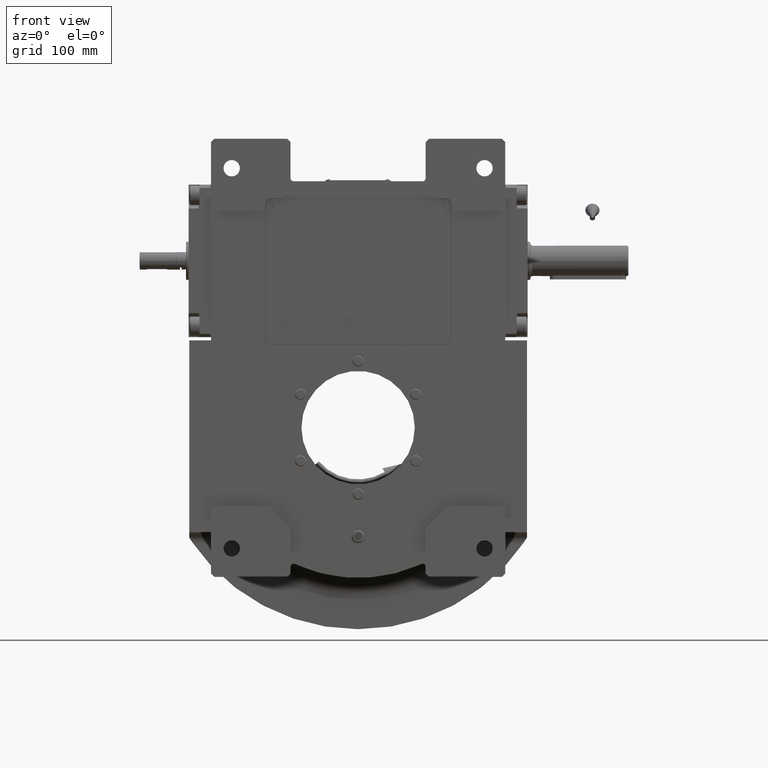
[diagram: clean part render]
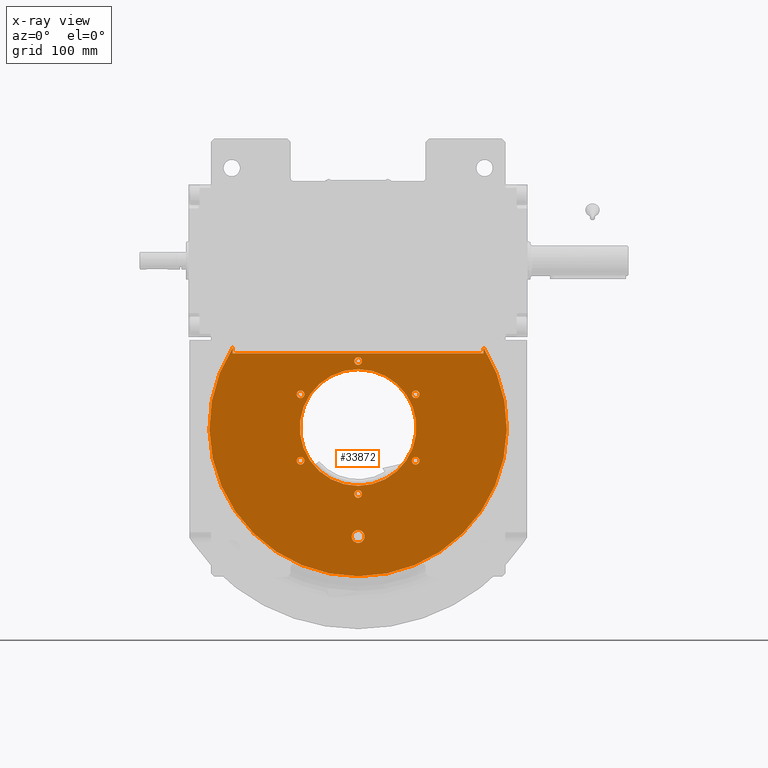
[diagram: x-ray — body ghosted, one internal face saturated and labeled with its STEP entity id]
A machine part, front view, then the same camera in x-ray: the body is ghosted and one INTERNAL B-rep face — a face not visible from any outside direction — is saturated and labeled: STEP entity #33872.
In plain terms, the highlighted planar face has unit normal (0, -1, 0).
Its self-contained STEP definition (entity closure, byte-faithful):
#151 = CIRCLE ( 'NONE', #30603, 3.500000000000003109 ) ;
#860 = EDGE_CURVE ( 'NONE', #9896, #62789, #32114, .T. ) ;
#1058 = CARTESIAN_POINT ( 'NONE',  ( 0.000000000000000000, -63.00000000000000000, -100.0000000000000000 ) ) ;
#1296 = CARTESIAN_POINT ( 'NONE',  ( -49.32754963085000099, -63.00000000000001421, 30.50000000000000000 ) ) ;
#1586 = DIRECTION ( 'NONE',  ( 0.000000000000000000, 0.000000000000000000, 1.000000000000000000 ) ) ;
#1795 = ORIENTED_EDGE ( 'NONE', *, *, #68847, .T. ) ;
#1920 = EDGE_CURVE ( 'NONE', #24894, #34578, #4031, .T. ) ;
#1983 = VERTEX_POINT ( 'NONE', #55883 ) ;
#4031 = CIRCLE ( 'NONE', #6336, 5.875000000000000000 ) ;
#4089 = EDGE_CURVE ( 'NONE', #63802, #20391, #28941, .T. ) ;
#4695 = DIRECTION ( 'NONE',  ( 0.000000000000000000, 0.000000000000000000, 1.000000000000000000 ) ) ;
#5028 = AXIS2_PLACEMENT_3D ( 'NONE', #12718, #7757, #7418 ) ;
#5316 = CARTESIAN_POINT ( 'NONE',  ( 6.551860375438339893E-15, -63.00000000000000000, 53.50000000000000000 ) ) ;
#5861 = EDGE_CURVE ( 'NONE', #45812, #15744, #60308, .T. ) ;
#6336 = AXIS2_PLACEMENT_3D ( 'NONE', #36308, #31027, #52519 ) ;
#7418 = DIRECTION ( 'NONE',  ( 0.000000000000000000, 0.000000000000000000, 1.000000000000000000 ) ) ;
#7498 = AXIS2_PLACEMENT_3D ( 'NONE', #8287, #51677, #62607 ) ;
#7570 = EDGE_CURVE ( 'NONE', #29074, #34883, #151, .T. ) ;
#7757 = DIRECTION ( 'NONE',  ( -0.000000000000000000, -1.000000000000000000, -0.000000000000000000 ) ) ;
#7849 = EDGE_CURVE ( 'NONE', #14340, #48114, #36231, .T. ) ;
#7957 = EDGE_CURVE ( 'NONE', #48114, #14340, #26170, .T. ) ;
#8287 = CARTESIAN_POINT ( 'NONE',  ( -52.82754963085000810, -63.00000000000001421, -30.50000000000000000 ) ) ;
#8733 = DIRECTION ( 'NONE',  ( -0.000000000000000000, -1.000000000000000000, -0.000000000000000000 ) ) ;
#9536 = CIRCLE ( 'NONE', #18500, 136.5000000000000000 ) ;
#9896 = VERTEX_POINT ( 'NONE', #33370 ) ;
#10065 = ORIENTED_EDGE ( 'NONE', *, *, #7849, .T. ) ;
#10368 = AXIS2_PLACEMENT_3D ( 'NONE', #29536, #61617, #56660 ) ;
#10568 = EDGE_LOOP ( 'NONE', ( #27696, #19028 ) ) ;
#10706 = DIRECTION ( 'NONE',  ( 0.000000000000000000, 0.000000000000000000, 1.000000000000000000 ) ) ;
#10751 = EDGE_LOOP ( 'NONE', ( #10065, #51729 ) ) ;
#11035 = CARTESIAN_POINT ( 'NONE',  ( 49.32754963085000099, -63.00000000000001421, -30.50000000000000000 ) ) ;
#11814 = FACE_BOUND ( 'NONE', #10751, .T. ) ;
#12239 = CARTESIAN_POINT ( 'NONE',  ( 115.0000000000000000, -63.00000000000000000, 73.53400573884168523 ) ) ;
#12345 = VECTOR ( 'NONE', #29713, 1000.000000000000000 ) ;
#12718 = CARTESIAN_POINT ( 'NONE',  ( 0.000000000000000000, -63.00000000000001421, 61.00000000000000000 ) ) ;
#12776 = CIRCLE ( 'NONE', #36453, 53.50000000000000000 ) ;
#12856 = FACE_BOUND ( 'NONE', #15843, .T. ) ;
#13203 = FACE_BOUND ( 'NONE', #44271, .T. ) ;
#14337 = EDGE_CURVE ( 'NONE', #67503, #57596, #9536, .T. ) ;
#14340 = VERTEX_POINT ( 'NONE', #67091 ) ;
#15001 = EDGE_CURVE ( 'NONE', #56575, #32284, #49052, .T. ) ;
#15744 = VERTEX_POINT ( 'NONE', #63870 ) ;
#15843 = EDGE_LOOP ( 'NONE', ( #54954, #23106 ) ) ;
#16785 = DIRECTION ( 'NONE',  ( -0.000000000000000000, -1.000000000000000000, -0.000000000000000000 ) ) ;
#17049 = CARTESIAN_POINT ( 'NONE',  ( -52.82754963085000810, -63.00000000000001421, -30.50000000000000000 ) ) ;
#17120 = FACE_BOUND ( 'NONE', #25834, .T. ) ;
#17664 = CARTESIAN_POINT ( 'NONE',  ( -115.0000000000000000, -63.00000000000000000, 0.000000000000000000 ) ) ;
#18154 = PLANE ( 'NONE',  #33698 ) ;
#18220 = AXIS2_PLACEMENT_3D ( 'NONE', #68418, #51840, #62772 ) ;
#18341 = CARTESIAN_POINT ( 'NONE',  ( -3.500000000000000000, -63.00000000000001421, -61.00000000000000000 ) ) ;
#18500 = AXIS2_PLACEMENT_3D ( 'NONE', #19477, #45920, #40969 ) ;
#18814 = CARTESIAN_POINT ( 'NONE',  ( 0.000000000000000000, -63.00000000000001421, -61.00000000000000000 ) ) ;
#19028 = ORIENTED_EDGE ( 'NONE', *, *, #15001, .T. ) ;
#19477 = CARTESIAN_POINT ( 'NONE',  ( 0.000000000000000000, -63.00000000000000000, 0.000000000000000000 ) ) ;
#20391 = VERTEX_POINT ( 'NONE', #34209 ) ;
#20544 = DIRECTION ( 'NONE',  ( -0.000000000000000000, -1.000000000000000000, -0.000000000000000000 ) ) ;
#20856 = AXIS2_PLACEMENT_3D ( 'NONE', #37534, #54084, #4695 ) ;
#21065 = CARTESIAN_POINT ( 'NONE',  ( 3.500000000000000000, -63.00000000000001421, 61.00000000000000000 ) ) ;
#21630 = EDGE_CURVE ( 'NONE', #1983, #67503, #36046, .T. ) ;
#22330 = CARTESIAN_POINT ( 'NONE',  ( 0.000000000000000000, -63.00000000000000000, 67.99999999999997158 ) ) ;
#22678 = DIRECTION ( 'NONE',  ( -1.000000000000000000, 0.000000000000000000, 0.000000000000000000 ) ) ;
#22806 = AXIS2_PLACEMENT_3D ( 'NONE', #25849, #20544, #47342 ) ;
#23034 = EDGE_LOOP ( 'NONE', ( #43517, #54304, #64222, #49082, #68267 ) ) ;
#23106 = ORIENTED_EDGE ( 'NONE', *, *, #860, .T. ) ;
#23321 = DIRECTION ( 'NONE',  ( 0.000000000000000000, -1.000000000000000000, 0.000000000000000000 ) ) ;
#23744 = CIRCLE ( 'NONE', #32739, 136.5000000000000000 ) ;
#24124 = DIRECTION ( 'NONE',  ( 0.000000000000000000, 0.000000000000000000, 1.000000000000000000 ) ) ;
#24894 = VERTEX_POINT ( 'NONE', #49237 ) ;
#25026 = EDGE_CURVE ( 'NONE', #56192, #58560, #40672, .T. ) ;
#25128 = CARTESIAN_POINT ( 'NONE',  ( 115.0000000000000000, -63.00000000000000000, 0.000000000000000000 ) ) ;
#25790 = VERTEX_POINT ( 'NONE', #5316 ) ;
#25834 = EDGE_LOOP ( 'NONE', ( #37339, #43375 ) ) ;
#25849 = CARTESIAN_POINT ( 'NONE',  ( 0.000000000000000000, -63.00000000000001421, -61.00000000000000000 ) ) ;
#25856 = ORIENTED_EDGE ( 'NONE', *, *, #64071, .F. ) ;
#26170 = CIRCLE ( 'NONE', #22806, 3.500000000000003109 ) ;
#26693 = FACE_OUTER_BOUND ( 'NONE', #23034, .T. ) ;
#27600 = CIRCLE ( 'NONE', #59064, 3.499999999999999556 ) ;
#27696 = ORIENTED_EDGE ( 'NONE', *, *, #48552, .T. ) ;
#28941 = CIRCLE ( 'NONE', #7498, 3.499999999999999556 ) ;
#29074 = VERTEX_POINT ( 'NONE', #62327 ) ;
#29423 = VERTEX_POINT ( 'NONE', #60496 ) ;
#29469 = DIRECTION ( 'NONE',  ( 0.000000000000000000, 0.000000000000000000, 1.000000000000000000 ) ) ;
#29507 = CIRCLE ( 'NONE', #10368, 3.500000000000003109 ) ;
#29536 = CARTESIAN_POINT ( 'NONE',  ( 52.82754963085000810, -63.00000000000001421, 30.50000000000000000 ) ) ;
#29713 = DIRECTION ( 'NONE',  ( 0.000000000000000000, 0.000000000000000000, 1.000000000000000000 ) ) ;
#29788 = DIRECTION ( 'NONE',  ( 0.000000000000000000, -1.000000000000000000, 0.000000000000000000 ) ) ;
#30012 = CARTESIAN_POINT ( 'NONE',  ( 0.000000000000000000, -63.00000000000001421, 61.00000000000000000 ) ) ;
#30082 = DIRECTION ( 'NONE',  ( 0.000000000000000000, 0.000000000000000000, 1.000000000000000000 ) ) ;
#30603 = AXIS2_PLACEMENT_3D ( 'NONE', #56683, #8733, #40126 ) ;
#31027 = DIRECTION ( 'NONE',  ( 0.000000000000000000, -1.000000000000000000, 0.000000000000000000 ) ) ;
#31579 = EDGE_LOOP ( 'NONE', ( #34488, #25856 ) ) ;
#32114 = CIRCLE ( 'NONE', #5028, 3.500000000000003109 ) ;
#32284 = VERTEX_POINT ( 'NONE', #1296 ) ;
#32739 = AXIS2_PLACEMENT_3D ( 'NONE', #48397, #49101, #63914 ) ;
#33357 = CARTESIAN_POINT ( 'NONE',  ( -52.82754963085000810, -63.00000000000001421, 30.50000000000000000 ) ) ;
#33370 = CARTESIAN_POINT ( 'NONE',  ( -3.500000000000000000, -63.00000000000001421, 61.00000000000000000 ) ) ;
#33698 = AXIS2_PLACEMENT_3D ( 'NONE', #50576, #29788, #65775 ) ;
#33872 = ADVANCED_FACE ( 'NONE', ( #17120, #26693, #38627, #60112, #11814, #54840, #42536, #13203, #12856 ), #18154, .F. ) ;
#34209 = CARTESIAN_POINT ( 'NONE',  ( -56.32754963085000099, -63.00000000000001421, -30.50000000000000000 ) ) ;
#34488 = ORIENTED_EDGE ( 'NONE', *, *, #46283, .F. ) ;
#34578 = VERTEX_POINT ( 'NONE', #58122 ) ;
#34765 = CARTESIAN_POINT ( 'NONE',  ( 52.82754963085000810, -63.00000000000001421, -30.50000000000000000 ) ) ;
#34809 = DIRECTION ( 'NONE',  ( 0.000000000000000000, 0.000000000000000000, 1.000000000000000000 ) ) ;
#34883 = VERTEX_POINT ( 'NONE', #44604 ) ;
#36046 = LINE ( 'NONE', #25128, #12345 ) ;
#36058 = CARTESIAN_POINT ( 'NONE',  ( 0.000000000000000000, -63.00000000000000000, 0.000000000000000000 ) ) ;
#36201 = DIRECTION ( 'NONE',  ( -0.000000000000000000, -1.000000000000000000, -0.000000000000000000 ) ) ;
#36231 = CIRCLE ( 'NONE', #40747, 3.500000000000003109 ) ;
#36308 = CARTESIAN_POINT ( 'NONE',  ( 0.000000000000000000, -63.00000000000000000, -100.0000000000000000 ) ) ;
#36453 = AXIS2_PLACEMENT_3D ( 'NONE', #36058, #67791, #30082 ) ;
#37339 = ORIENTED_EDGE ( 'NONE', *, *, #59187, .T. ) ;
#37525 = DIRECTION ( 'NONE',  ( -0.000000000000000000, -1.000000000000000000, -0.000000000000000000 ) ) ;
#37534 = CARTESIAN_POINT ( 'NONE',  ( -52.82754963085000810, -63.00000000000001421, 30.50000000000000000 ) ) ;
#38627 = FACE_BOUND ( 'NONE', #10568, .T. ) ;
#40126 = DIRECTION ( 'NONE',  ( 0.000000000000000000, 0.000000000000000000, 1.000000000000000000 ) ) ;
#40302 = DIRECTION ( 'NONE',  ( -0.000000000000000000, -1.000000000000000000, -0.000000000000000000 ) ) ;
#40672 = CIRCLE ( 'NONE', #54213, 3.499999999999999556 ) ;
#40747 = AXIS2_PLACEMENT_3D ( 'NONE', #18814, #40302, #24124 ) ;
#40969 = DIRECTION ( 'NONE',  ( 0.000000000000000000, 0.000000000000000000, 1.000000000000000000 ) ) ;
#41711 = EDGE_CURVE ( 'NONE', #57596, #15744, #23744, .T. ) ;
#42290 = ORIENTED_EDGE ( 'NONE', *, *, #60011, .T. ) ;
#42536 = FACE_BOUND ( 'NONE', #54269, .T. ) ;
#42997 = CIRCLE ( 'NONE', #18220, 53.50000000000000000 ) ;
#43375 = ORIENTED_EDGE ( 'NONE', *, *, #1920, .T. ) ;
#43517 = ORIENTED_EDGE ( 'NONE', *, *, #68322, .F. ) ;
#44271 = EDGE_LOOP ( 'NONE', ( #45718, #1795 ) ) ;
#44604 = CARTESIAN_POINT ( 'NONE',  ( 49.32754963085000099, -63.00000000000001421, 30.50000000000000000 ) ) ;
#45221 = EDGE_CURVE ( 'NONE', #34883, #29074, #29507, .T. ) ;
#45718 = ORIENTED_EDGE ( 'NONE', *, *, #25026, .T. ) ;
#45812 = VERTEX_POINT ( 'NONE', #51998 ) ;
#45920 = DIRECTION ( 'NONE',  ( 0.000000000000000000, 1.000000000000000000, 0.000000000000000000 ) ) ;
#46283 = EDGE_CURVE ( 'NONE', #29423, #25790, #12776, .T. ) ;
#46548 = CIRCLE ( 'NONE', #56646, 3.499999999999999556 ) ;
#46808 = ORIENTED_EDGE ( 'NONE', *, *, #45221, .T. ) ;
#46910 = DIRECTION ( 'NONE',  ( 0.000000000000000000, 0.000000000000000000, 1.000000000000000000 ) ) ;
#47342 = DIRECTION ( 'NONE',  ( 0.000000000000000000, 0.000000000000000000, 1.000000000000000000 ) ) ;
#48114 = VERTEX_POINT ( 'NONE', #18341 ) ;
#48397 = CARTESIAN_POINT ( 'NONE',  ( 0.000000000000000000, -63.00000000000000000, 0.000000000000000000 ) ) ;
#48552 = EDGE_CURVE ( 'NONE', #32284, #56575, #51285, .T. ) ;
#49052 = CIRCLE ( 'NONE', #60265, 3.500000000000003109 ) ;
#49082 = ORIENTED_EDGE ( 'NONE', *, *, #41711, .T. ) ;
#49101 = DIRECTION ( 'NONE',  ( 0.000000000000000000, 1.000000000000000000, 0.000000000000000000 ) ) ;
#49237 = CARTESIAN_POINT ( 'NONE',  ( -5.875000000000000000, -63.00000000000000000, -100.0000000000000000 ) ) ;
#50576 = CARTESIAN_POINT ( 'NONE',  ( 0.000000000000000000, -63.00000000000000000, 2.534926901656999453E-14 ) ) ;
#51255 = EDGE_LOOP ( 'NONE', ( #63465, #46808 ) ) ;
#51285 = CIRCLE ( 'NONE', #20856, 3.500000000000003109 ) ;
#51360 = CARTESIAN_POINT ( 'NONE',  ( -56.32754963085000099, -63.00000000000001421, 30.50000000000000000 ) ) ;
#51677 = DIRECTION ( 'NONE',  ( -0.000000000000000000, -1.000000000000000000, -0.000000000000000000 ) ) ;
#51729 = ORIENTED_EDGE ( 'NONE', *, *, #7957, .T. ) ;
#51840 = DIRECTION ( 'NONE',  ( 0.000000000000000000, 1.000000000000000000, 0.000000000000000000 ) ) ;
#51998 = CARTESIAN_POINT ( 'NONE',  ( -115.0000000000000000, -63.00000000000000000, 67.99999999999997158 ) ) ;
#52078 = CIRCLE ( 'NONE', #53336, 5.875000000000000000 ) ;
#52207 = VECTOR ( 'NONE', #65611, 1000.000000000000000 ) ;
#52519 = DIRECTION ( 'NONE',  ( -1.000000000000000000, 0.000000000000000000, 0.000000000000000000 ) ) ;
#53336 = AXIS2_PLACEMENT_3D ( 'NONE', #1058, #23321, #55364 ) ;
#53699 = LINE ( 'NONE', #22330, #64665 ) ;
#54084 = DIRECTION ( 'NONE',  ( -0.000000000000000000, -1.000000000000000000, -0.000000000000000000 ) ) ;
#54213 = AXIS2_PLACEMENT_3D ( 'NONE', #34765, #65807, #29469 ) ;
#54248 = EDGE_CURVE ( 'NONE', #62789, #9896, #60783, .T. ) ;
#54269 = EDGE_LOOP ( 'NONE', ( #55271, #42290 ) ) ;
#54304 = ORIENTED_EDGE ( 'NONE', *, *, #21630, .T. ) ;
#54840 = FACE_BOUND ( 'NONE', #31579, .T. ) ;
#54954 = ORIENTED_EDGE ( 'NONE', *, *, #54248, .T. ) ;
#55271 = ORIENTED_EDGE ( 'NONE', *, *, #4089, .T. ) ;
#55364 = DIRECTION ( 'NONE',  ( 1.000000000000000000, 0.000000000000000000, 0.000000000000000000 ) ) ;
#55883 = CARTESIAN_POINT ( 'NONE',  ( 115.0000000000000000, -63.00000000000000000, 67.99999999999997158 ) ) ;
#56034 = CARTESIAN_POINT ( 'NONE',  ( 56.32754963085000810, -63.00000000000001421, -30.50000000000000000 ) ) ;
#56192 = VERTEX_POINT ( 'NONE', #56034 ) ;
#56575 = VERTEX_POINT ( 'NONE', #51360 ) ;
#56646 = AXIS2_PLACEMENT_3D ( 'NONE', #17049, #37525, #10706 ) ;
#56660 = DIRECTION ( 'NONE',  ( 0.000000000000000000, 0.000000000000000000, 1.000000000000000000 ) ) ;
#56683 = CARTESIAN_POINT ( 'NONE',  ( 52.82754963085000810, -63.00000000000001421, 30.50000000000000000 ) ) ;
#57596 = VERTEX_POINT ( 'NONE', #64455 ) ;
#58122 = CARTESIAN_POINT ( 'NONE',  ( 5.875000000000000000, -63.00000000000000000, -100.0000000000000000 ) ) ;
#58560 = VERTEX_POINT ( 'NONE', #11035 ) ;
#59064 = AXIS2_PLACEMENT_3D ( 'NONE', #67593, #36201, #34809 ) ;
#59187 = EDGE_CURVE ( 'NONE', #34578, #24894, #52078, .T. ) ;
#60011 = EDGE_CURVE ( 'NONE', #20391, #63802, #46548, .T. ) ;
#60112 = FACE_BOUND ( 'NONE', #51255, .T. ) ;
#60265 = AXIS2_PLACEMENT_3D ( 'NONE', #33357, #16785, #1586 ) ;
#60308 = LINE ( 'NONE', #17664, #52207 ) ;
#60322 = CARTESIAN_POINT ( 'NONE',  ( -49.32754963085000099, -63.00000000000001421, -30.50000000000000000 ) ) ;
#60496 = CARTESIAN_POINT ( 'NONE',  ( 0.000000000000000000, -63.00000000000000000, -53.50000000000000000 ) ) ;
#60783 = CIRCLE ( 'NONE', #67564, 3.500000000000003109 ) ;
#61617 = DIRECTION ( 'NONE',  ( -0.000000000000000000, -1.000000000000000000, -0.000000000000000000 ) ) ;
#62327 = CARTESIAN_POINT ( 'NONE',  ( 56.32754963085000810, -63.00000000000001421, 30.50000000000000000 ) ) ;
#62425 = DIRECTION ( 'NONE',  ( -0.000000000000000000, -1.000000000000000000, -0.000000000000000000 ) ) ;
#62607 = DIRECTION ( 'NONE',  ( 0.000000000000000000, 0.000000000000000000, 1.000000000000000000 ) ) ;
#62772 = DIRECTION ( 'NONE',  ( 0.000000000000000000, 0.000000000000000000, 1.000000000000000000 ) ) ;
#62789 = VERTEX_POINT ( 'NONE', #21065 ) ;
#63465 = ORIENTED_EDGE ( 'NONE', *, *, #7570, .T. ) ;
#63802 = VERTEX_POINT ( 'NONE', #60322 ) ;
#63870 = CARTESIAN_POINT ( 'NONE',  ( -115.0000000000000000, -63.00000000000000000, 73.53400573884168523 ) ) ;
#63914 = DIRECTION ( 'NONE',  ( 0.000000000000000000, 0.000000000000000000, 1.000000000000000000 ) ) ;
#64071 = EDGE_CURVE ( 'NONE', #25790, #29423, #42997, .T. ) ;
#64222 = ORIENTED_EDGE ( 'NONE', *, *, #14337, .T. ) ;
#64455 = CARTESIAN_POINT ( 'NONE',  ( 0.000000000000000000, -63.00000000000000000, -136.5000000000000000 ) ) ;
#64665 = VECTOR ( 'NONE', #22678, 1000.000000000000000 ) ;
#65611 = DIRECTION ( 'NONE',  ( 0.000000000000000000, 0.000000000000000000, 1.000000000000000000 ) ) ;
#65775 = DIRECTION ( 'NONE',  ( 0.000000000000000000, 0.000000000000000000, -1.000000000000000000 ) ) ;
#65807 = DIRECTION ( 'NONE',  ( -0.000000000000000000, -1.000000000000000000, -0.000000000000000000 ) ) ;
#67091 = CARTESIAN_POINT ( 'NONE',  ( 3.500000000000000000, -63.00000000000001421, -61.00000000000000000 ) ) ;
#67503 = VERTEX_POINT ( 'NONE', #12239 ) ;
#67564 = AXIS2_PLACEMENT_3D ( 'NONE', #30012, #62425, #46910 ) ;
#67593 = CARTESIAN_POINT ( 'NONE',  ( 52.82754963085000810, -63.00000000000001421, -30.50000000000000000 ) ) ;
#67791 = DIRECTION ( 'NONE',  ( 0.000000000000000000, 1.000000000000000000, 0.000000000000000000 ) ) ;
#68267 = ORIENTED_EDGE ( 'NONE', *, *, #5861, .F. ) ;
#68322 = EDGE_CURVE ( 'NONE', #1983, #45812, #53699, .T. ) ;
#68418 = CARTESIAN_POINT ( 'NONE',  ( 0.000000000000000000, -63.00000000000000000, 0.000000000000000000 ) ) ;
#68847 = EDGE_CURVE ( 'NONE', #58560, #56192, #27600, .T. ) ;